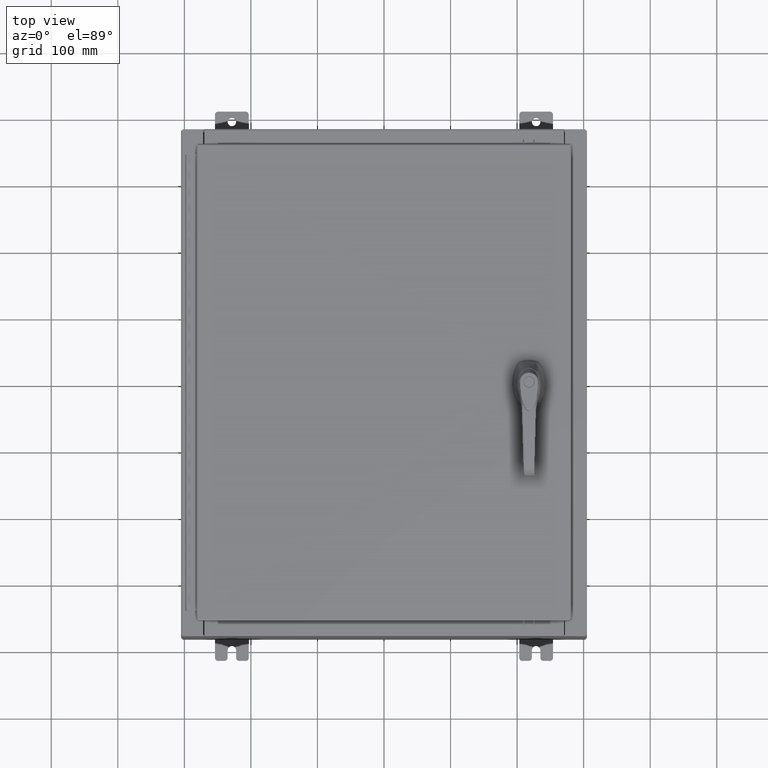
[diagram: clean part render]
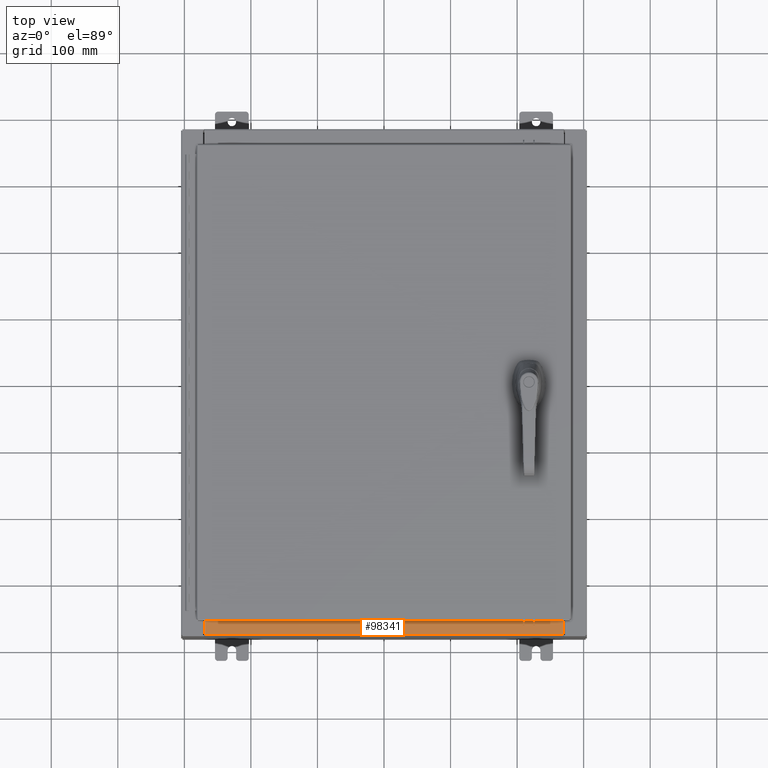
[diagram: same view with one face highlighted and labeled with its STEP entity id]
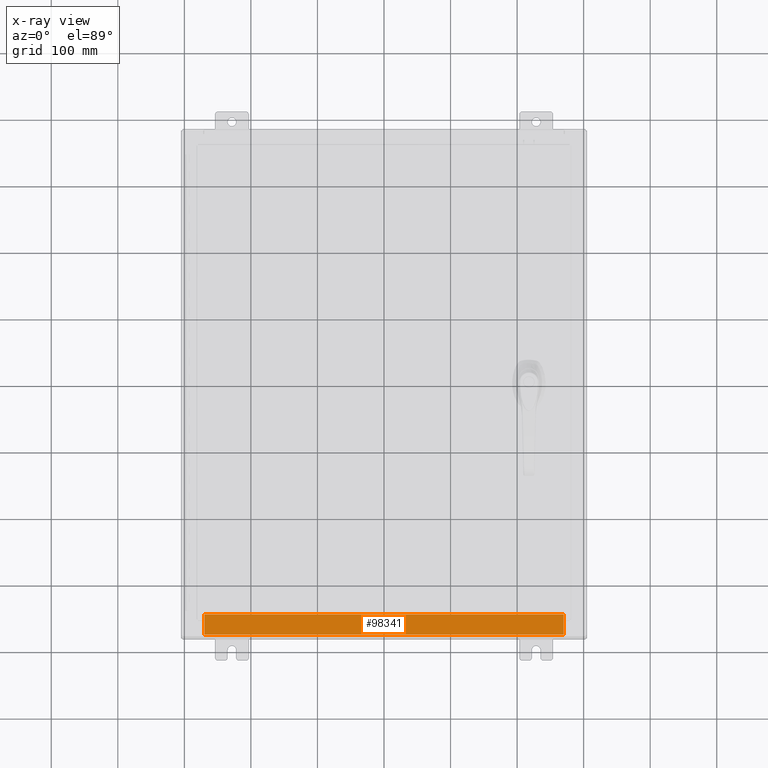
[diagram: x-ray of the same camera — body ghosted, the highlighted face saturated]
A machine part, top view. The second image highlights one B-rep face of the part: STEP entity #98341.
The next image is the same camera in x-ray: the body ghosted, the highlighted face saturated — about 0% of this face is hidden behind the body in this view.
In plain terms, the highlighted planar face has unit normal (-0, -0, 1).
Its self-contained STEP definition (entity closure, byte-faithful):
#3168 = CARTESIAN_POINT ( 'NONE',  ( -10.63720000000000200, -0.08770000000000026400, 6.000000000000001800 ) ) ;
#5203 = EDGE_CURVE ( 'NONE', #10086, #115512, #83550, .T. ) ;
#5399 = ORIENTED_EDGE ( 'NONE', *, *, #88273, .F. ) ;
#8821 = DIRECTION ( 'NONE',  ( -0.0000000000000000000, -1.000000000000000000, 3.566381192773190000E-015 ) ) ;
#9174 = CARTESIAN_POINT ( 'NONE',  ( -10.63720000000000200, -1.287299999999998100, 6.000000000000004400 ) ) ;
#9491 = VERTEX_POINT ( 'NONE', #3168 ) ;
#10086 = VERTEX_POINT ( 'NONE', #103437 ) ;
#11010 = AXIS2_PLACEMENT_3D ( 'NONE', #92341, #101517, #46706 ) ;
#20974 = LINE ( 'NONE', #36415, #109780 ) ;
#21282 = CARTESIAN_POINT ( 'NONE',  ( 10.63720000000000400, -1.287299999999998800, 6.000000000000003600 ) ) ;
#28270 = PLANE ( 'NONE',  #11010 ) ;
#36415 = CARTESIAN_POINT ( 'NONE',  ( 10.63720000000000200, -1.300299999999999800, 6.000000000000006200 ) ) ;
#38362 = EDGE_LOOP ( 'NONE', ( #110110, #91832, #5399, #56803 ) ) ;
#40051 = EDGE_CURVE ( 'NONE', #76424, #9491, #110481, .T. ) ;
#46706 = DIRECTION ( 'NONE',  ( 0.0000000000000000000, -1.000000000000000000, 2.674785894579892700E-015 ) ) ;
#52880 = EDGE_CURVE ( 'NONE', #115512, #9491, #83835, .T. ) ;
#56803 = ORIENTED_EDGE ( 'NONE', *, *, #40051, .T. ) ;
#59451 = VECTOR ( 'NONE', #79148, 39.37007874015748100 ) ;
#69978 = CARTESIAN_POINT ( 'NONE',  ( -10.63720000000000200, -0.07469999999999973900, 6.000000000000001800 ) ) ;
#76424 = VERTEX_POINT ( 'NONE', #96057 ) ;
#79148 = DIRECTION ( 'NONE',  ( -0.0000000000000000000, 1.000000000000000000, -2.674785894579892700E-015 ) ) ;
#83550 = LINE ( 'NONE', #21282, #107847 ) ;
#83835 = LINE ( 'NONE', #69978, #59451 ) ;
#85777 = DIRECTION ( 'NONE',  ( -1.000000000000000000, 0.0000000000000000000, 0.0000000000000000000 ) ) ;
#88273 = EDGE_CURVE ( 'NONE', #76424, #10086, #20974, .T. ) ;
#91832 = ORIENTED_EDGE ( 'NONE', *, *, #5203, .F. ) ;
#92341 = CARTESIAN_POINT ( 'NONE',  ( -3.422455537835030400E-018, 1.610972251716582100E-014, 6.000000000000001800 ) ) ;
#93167 = DIRECTION ( 'NONE',  ( -1.000000000000000000, 0.0000000000000000000, 0.0000000000000000000 ) ) ;
#96057 = CARTESIAN_POINT ( 'NONE',  ( 10.63720000000000400, -0.08770000000000002800, 6.000000000000001800 ) ) ;
#98341 = ADVANCED_FACE ( 'NONE', ( #107851 ), #28270, .T. ) ;
#101517 = DIRECTION ( 'NONE',  ( 0.0000000000000000000, 2.674785894579892700E-015, 1.000000000000000000 ) ) ;
#103437 = CARTESIAN_POINT ( 'NONE',  ( 10.63720000000000200, -1.287299999999998800, 6.000000000000006200 ) ) ;
#107598 = VECTOR ( 'NONE', #93167, 39.37007874015748100 ) ;
#107847 = VECTOR ( 'NONE', #85777, 39.37007874015748100 ) ;
#107851 = FACE_OUTER_BOUND ( 'NONE', #38362, .T. ) ;
#109780 = VECTOR ( 'NONE', #8821, 39.37007874015748100 ) ;
#110110 = ORIENTED_EDGE ( 'NONE', *, *, #52880, .F. ) ;
#110481 = LINE ( 'NONE', #111123, #107598 ) ;
#111123 = CARTESIAN_POINT ( 'NONE',  ( -3.422455537835030400E-018, -0.08770000000000026400, 6.000000000000001800 ) ) ;
#115512 = VERTEX_POINT ( 'NONE', #9174 ) ;